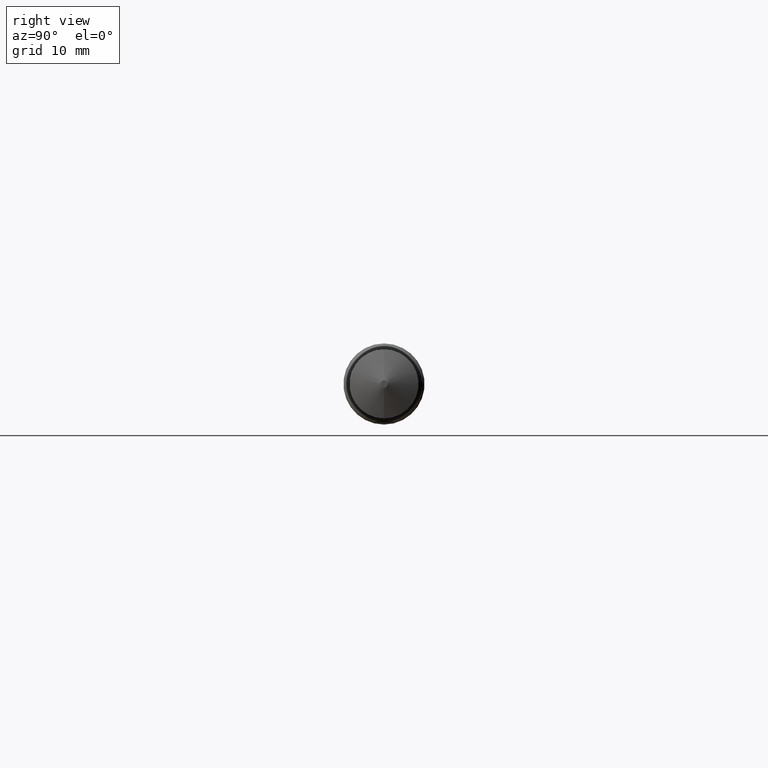
[diagram: clean part render]
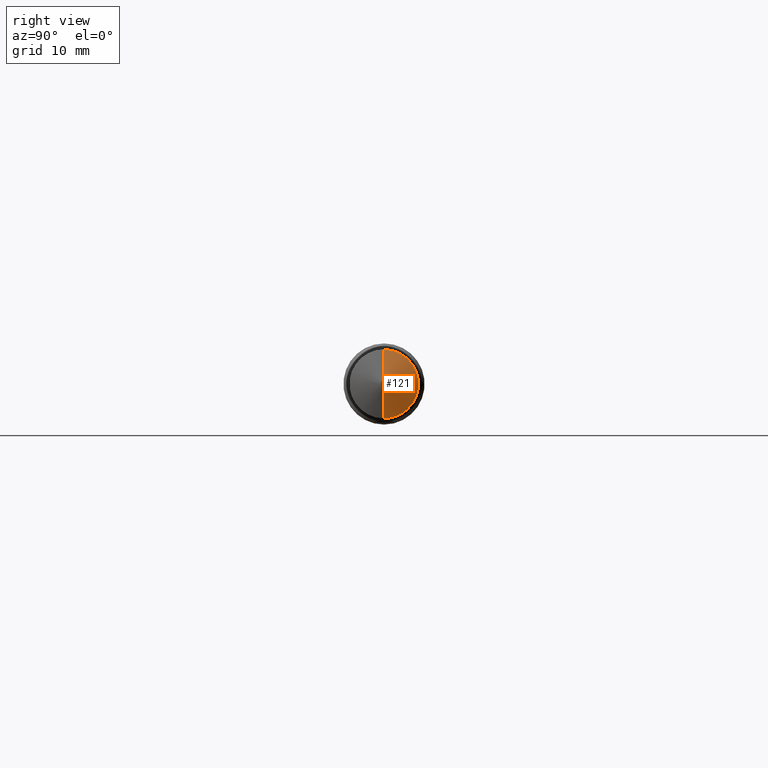
[diagram: same view with one face highlighted and labeled with its STEP entity id]
A machine part, right view. The second image highlights one B-rep face of the part: STEP entity #121.
In plain terms, the highlighted conical surface has half-angle 70 deg.
Its self-contained STEP definition (entity closure, byte-faithful):
#1 = CARTESIAN_POINT ( 'NONE',  ( 3.449341472734085645, 0.000000000000000000, 0.000000000000000000 ) ) ;
#22 = EDGE_LOOP ( 'NONE', ( #287, #252, #104, #188 ) ) ;
#24 = CARTESIAN_POINT ( 'NONE',  ( 3.503937007874015741, 0.000000000000000000, 0.01750000000000043535 ) ) ;
#30 = VERTEX_POINT ( 'NONE', #345 ) ;
#50 = EDGE_CURVE ( 'NONE', #259, #30, #65, .T. ) ;
#52 = CONICAL_SURFACE ( 'NONE', #110, 0.01750000000000043535, 1.221730476396033493 ) ;
#53 = VECTOR ( 'NONE', #62, 39.37007874015748854 ) ;
#59 = DIRECTION ( 'NONE',  ( 0.000000000000000000, 0.000000000000000000, -1.000000000000000000 ) ) ;
#62 = DIRECTION ( 'NONE',  ( -0.3420201433256661039, 0.000000000000000000, 0.9396926207859094271 ) ) ;
#65 = CIRCLE ( 'NONE', #199, 0.1675000000000004541 ) ;
#72 = DIRECTION ( 'NONE',  ( 1.000000000000000000, -0.000000000000000000, -0.000000000000000000 ) ) ;
#86 = CARTESIAN_POINT ( 'NONE',  ( 3.503937007874015741, 0.000000000000000000, 0.000000000000000000 ) ) ;
#87 = CARTESIAN_POINT ( 'NONE',  ( 3.503937007874015741, 1.132798289211307374E-17, -0.01750000000000043535 ) ) ;
#101 = CARTESIAN_POINT ( 'NONE',  ( 3.449341472734085645, 2.051283388571821633E-17, -0.1675000000000003986 ) ) ;
#104 = ORIENTED_EDGE ( 'NONE', *, *, #50, .T. ) ;
#110 = AXIS2_PLACEMENT_3D ( 'NONE', #86, #198, #177 ) ;
#113 = EDGE_CURVE ( 'NONE', #378, #259, #291, .T. ) ;
#121 = ADVANCED_FACE ( 'NONE', ( #167 ), #52, .T. ) ;
#144 = CARTESIAN_POINT ( 'NONE',  ( 3.503937007874015741, 0.000000000000000000, 0.01750000000000043535 ) ) ;
#150 = DIRECTION ( 'NONE',  ( -0.3420201433256661039, 1.150791560227851502E-16, -0.9396926207859094271 ) ) ;
#167 = FACE_OUTER_BOUND ( 'NONE', #22, .T. ) ;
#177 = DIRECTION ( 'NONE',  ( 0.000000000000000000, 0.000000000000000000, 1.000000000000000000 ) ) ;
#188 = ORIENTED_EDGE ( 'NONE', *, *, #364, .F. ) ;
#198 = DIRECTION ( 'NONE',  ( -1.000000000000000000, 0.000000000000000000, 0.000000000000000000 ) ) ;
#199 = AXIS2_PLACEMENT_3D ( 'NONE', #1, #234, #59 ) ;
#220 = DIRECTION ( 'NONE',  ( 0.000000000000000000, 0.000000000000000000, -1.000000000000000000 ) ) ;
#232 = VECTOR ( 'NONE', #150, 39.37007874015748854 ) ;
#234 = DIRECTION ( 'NONE',  ( 1.000000000000000000, -0.000000000000000000, -0.000000000000000000 ) ) ;
#252 = ORIENTED_EDGE ( 'NONE', *, *, #113, .T. ) ;
#259 = VERTEX_POINT ( 'NONE', #101 ) ;
#272 = EDGE_CURVE ( 'NONE', #378, #344, #295, .T. ) ;
#287 = ORIENTED_EDGE ( 'NONE', *, *, #272, .F. ) ;
#290 = AXIS2_PLACEMENT_3D ( 'NONE', #300, #72, #220 ) ;
#291 = LINE ( 'NONE', #343, #232 ) ;
#295 = CIRCLE ( 'NONE', #290, 0.01750000000000043535 ) ;
#300 = CARTESIAN_POINT ( 'NONE',  ( 3.503937007874015741, 0.000000000000000000, 0.000000000000000000 ) ) ;
#317 = LINE ( 'NONE', #24, #53 ) ;
#343 = CARTESIAN_POINT ( 'NONE',  ( 3.503937007874015741, 2.143131898507921145E-18, -0.01750000000000043535 ) ) ;
#344 = VERTEX_POINT ( 'NONE', #144 ) ;
#345 = CARTESIAN_POINT ( 'NONE',  ( 3.449341472734085645, 0.000000000000000000, 0.1675000000000003986 ) ) ;
#364 = EDGE_CURVE ( 'NONE', #344, #30, #317, .T. ) ;
#378 = VERTEX_POINT ( 'NONE', #87 ) ;